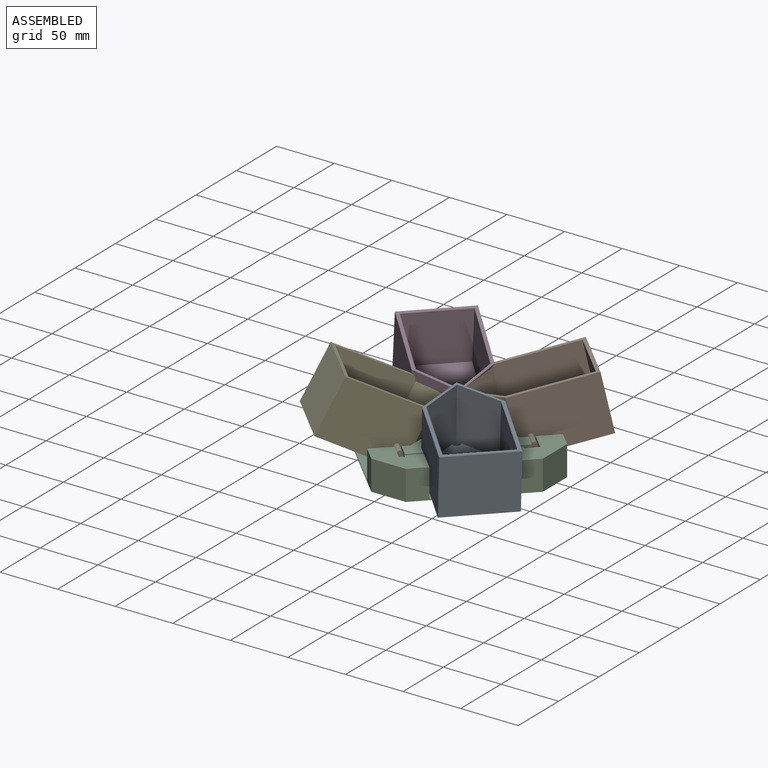
[diagram: assembled view]
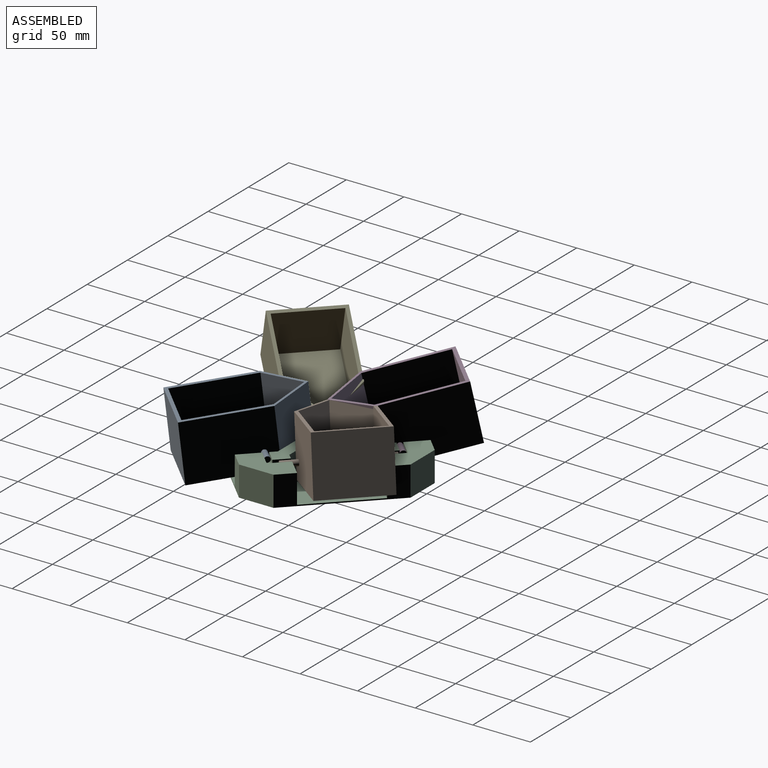
[diagram: assembled view, second angle]
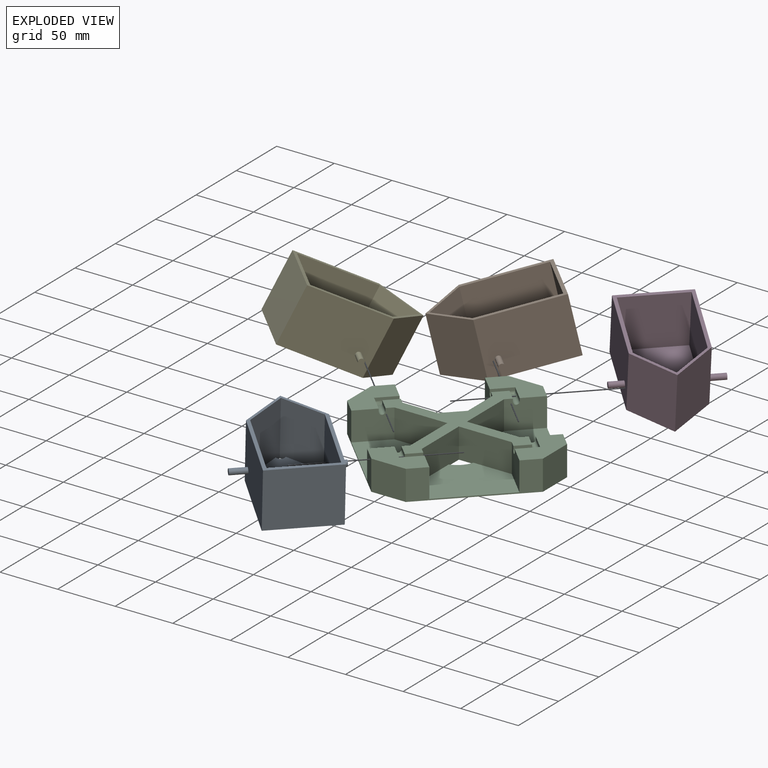
[diagram: exploded view]
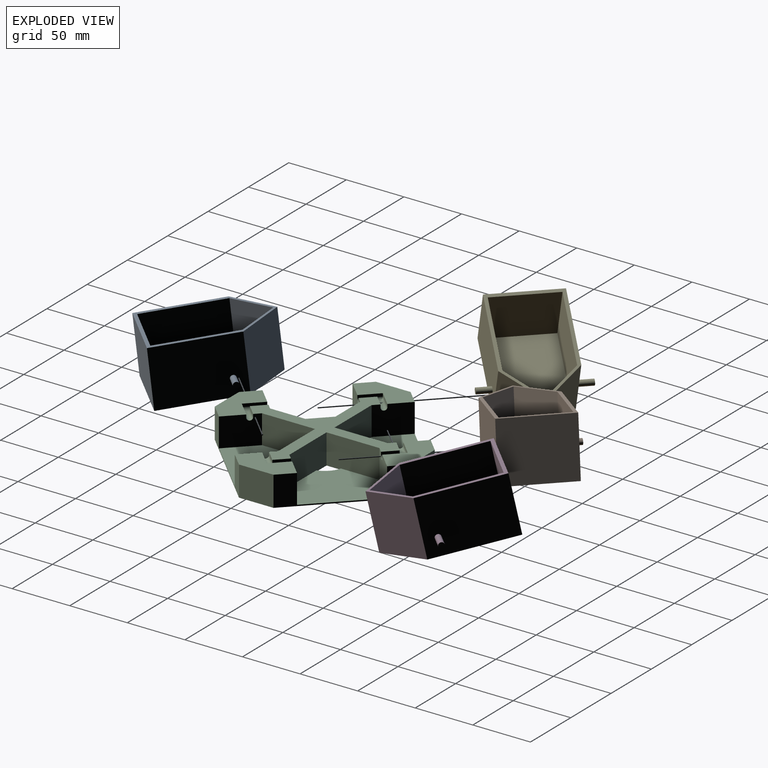
[diagram: exploded view, second angle]
ASSEMBLY  parts=5 mates=4
PART A: 18 faces, bbox 100x86x50 mm
  f0: plane 50x27mm, normal (-0.71,0.71,0), area 1809.6mm2, adj f1,f9,f10,f11,f12,f13
  f1: plane 67x47mm, normal (0,1,0), area 3149mm2, adj f0,f2,f10,f13
  f2: plane 54x47mm, normal (1,0,0), area 2538mm2, adj f1,f3,f10,f13
  f3: plane 67x47mm, normal (0,-1,0), area 3149mm2, adj f2,f9,f10,f13
  f4: plane 60x50mm, normal (-1,0,0), area 3000mm2, adj f5,f8,f10,f11
  f5: plane 70x50mm, normal (0,-1,0), area 3480.4mm2, adj f4,f6,f10,f11,f16
  f6: plane 50x30mm, normal (0.71,-0.71,0), area 2121.3mm2, adj f5,f7,f10,f11
  f7: plane 50x30mm, normal (0.71,0.71,0), area 2121.3mm2, adj f6,f8,f10,f11
  f8: plane 70x50mm, normal (0,1,0), area 3480.4mm2, adj f4,f7,f10,f11,f15
  f9: plane 50x27mm, normal (-0.71,-0.71,0), area 1809.6mm2, adj f0,f3,f10,f11,f12,f13
  f10: plane 100x60mm, normal (0,0,1), area 753mm2, adj f0,f1,f2,f3,f4,f5,f6,f7
  f11: plane 100x60mm, normal (0,0,-1), area 5074.3mm2, adj f0,f4,f5,f6,f7,f8,f9,f12
  f12: cylinder r=3.71mm len=7.06mm, axis (0,0,-1), area 28mm2, adj f0,f9,f11,f13
  f13: plane 90.47x54mm, normal (0,0,1), area 4321.3mm2, adj f0,f1,f2,f3,f9,f12
  f14: plane 5x5mm, normal (0,1,0), area 19.6mm2, adj f15
  f15: cylinder r=2.5mm len=14mm, axis (0,-1,0), area 219.9mm2, adj f8,f14
  f16: cylinder r=2.5mm len=12mm, axis (0,1,0), area 188.5mm2, adj f5,f17
  f17: plane 5x5mm, normal (0,-1,0), area 19.6mm2, adj f16
PART B: same geometry as A
PART C: 62 faces, bbox 170x170x26 mm
  f0: plane 54x25.96mm, normal (0,0,1), area 893.1mm2, adj f6,f8,f11,f26,f27,f44,f45
  f1: plane 54x25.96mm, normal (0,0,1), area 893.1mm2, adj f5,f10,f11,f22,f23,f48,f49
  f2: plane 54x25.96mm, normal (0,0,1), area 893.1mm2, adj f4,f9,f10,f18,f19,f52,f53
  f3: plane 54x25.96mm, normal (0,0,1), area 893.1mm2, adj f7,f8,f9,f30,f31,f40,f41
  f4: plane 25x22mm, normal (-0.71,-0.71,0), area 755.5mm2, adj f2,f9,f16,f17,f33,f51,f52,f57
  f5: plane 25x22mm, normal (0.71,-0.71,0), area 755.5mm2, adj f1,f10,f15,f21,f33,f47,f48,f59
  f6: plane 25x22mm, normal (0.71,0.71,0), area 755.5mm2, adj f0,f11,f14,f25,f33,f43,f44,f60
  f7: plane 25x22mm, normal (-0.71,0.71,0), area 755.5mm2, adj f3,f8,f13,f29,f33,f39,f40,f54
  f8: plane 70x70mm, normal (-0.71,-0.71,0), area 947.5mm2, adj f0,f3,f7,f12,f13,f26,f27,f30
  f9: plane 70x70mm, normal (0.71,-0.71,0), area 947.5mm2, adj f2,f3,f4,f12,f16,f18,f30,f31
  f10: plane 70x70mm, normal (0.71,0.71,0), area 947.5mm2, adj f1,f2,f5,f12,f15,f18,f19,f22
  f11: plane 70x70mm, normal (-0.71,0.71,0), area 947.5mm2, adj f0,f1,f6,f12,f14,f22,f23,f26
  f12: plane 170x170mm, normal (0,0,-1), area 18674.8mm2, adj f8,f9,f10,f11,f17,f18,f20,f21
  f13: plane 68x68mm, normal (0,0,1), area 2975.7mm2, adj f7,f8,f27,f28,f29,f37
  f14: plane 68x68mm, normal (0,0,1), area 2975.7mm2, adj f6,f11,f23,f24,f25,f34
  f15: plane 68x68mm, normal (0,0,1), area 2975.7mm2, adj f5,f10,f19,f20,f21,f35
  f16: plane 68x68mm, normal (0,0,1), area 2975.7mm2, adj f4,f9,f17,f31,f32,f36
  f17: plane 46x26mm, normal (0,-1,0), area 1162.5mm2, adj f4,f12,f16,f32,f33,f36
  f18: plane 30x26mm, normal (1,0,0), area 780mm2, adj f2,f9,f10,f12
  f19: plane 25x22mm, normal (-0.71,0.71,0), area 755.5mm2, adj f2,f10,f15,f20,f33,f50,f53,f56
  f20: plane 46x26mm, normal (0,1,0), area 1162.5mm2, adj f12,f15,f19,f21,f33,f35
  f21: plane 46x26mm, normal (1,0,0), area 1162.5mm2, adj f5,f12,f15,f20,f33,f35
  f22: plane 30x26mm, normal (0,1,0), area 780mm2, adj f1,f10,f11,f12
  f23: plane 25x22mm, normal (-0.71,-0.71,0), area 755.5mm2, adj f1,f11,f14,f24,f33,f46,f49,f58
  f24: plane 46x26mm, normal (-1,0,0), area 1162.5mm2, adj f12,f14,f23,f25,f33,f34
  f25: plane 46x26mm, normal (0,1,0), area 1162.5mm2, adj f6,f12,f14,f24,f33,f34
  f26: plane 30x26mm, normal (-1,0,0), area 780mm2, adj f0,f8,f11,f12
  f27: plane 25x22mm, normal (0.71,-0.71,0), area 755.5mm2, adj f0,f8,f13,f28,f33,f42,f45,f61
  f28: plane 46x26mm, normal (0,-1,0), area 1162.5mm2, adj f12,f13,f27,f29,f33,f37
  f29: plane 46x26mm, normal (-1,0,0), area 1162.5mm2, adj f7,f12,f13,f28,f33,f37
  f30: plane 30x26mm, normal (0,-1,0), area 780mm2, adj f3,f8,f9,f12
  f31: plane 25x22mm, normal (0.71,0.71,0), area 755.5mm2, adj f3,f9,f16,f32,f33,f38,f41,f55
  f32: plane 46x26mm, normal (1,0,0), area 1162.5mm2, adj f12,f16,f17,f31,f33,f36
  f33: plane 130x130mm, normal (0,0,1), area 2562mm2, adj f4,f5,f6,f7,f17,f19,f20,f21
  f34: cylinder r=18.24mm len=12.55mm, axis (0,0,1), area 18.5mm2, adj f12,f14,f24,f25
  f35: cylinder r=18.24mm len=12.55mm, axis (0,0,1), area 18.5mm2, adj f12,f15,f20,f21
  f36: cylinder r=18.24mm len=12.55mm, axis (0,0,1), area 18.5mm2, adj f12,f16,f17,f32
  f37: cylinder r=18.24mm len=12.55mm, axis (0,0,1), area 18.5mm2, adj f12,f13,f28,f29
  f38: plane 9.5x9.5mm, normal (0.71,-0.71,0), area 33.6mm2, adj f31,f33,f39,f55
  f39: plane 9.5x9.5mm, normal (-0.71,-0.71,0), area 33.6mm2, adj f7,f33,f38,f54
  f40: plane 13.04x13.04mm, normal (0.71,0.71,0), area 46.1mm2, adj f3,f7,f41,f54
  f41: plane 13.04x13.04mm, normal (-0.71,0.71,0), area 46.1mm2, adj f3,f31,f40,f55
  f42: plane 9.5x9.5mm, normal (-0.71,-0.71,0), area 33.6mm2, adj f27,f33,f43,f61
  f43: plane 9.5x9.5mm, normal (-0.71,0.71,0), area 33.6mm2, adj f6,f33,f42,f60
  f44: plane 13.04x13.04mm, normal (0.71,-0.71,0), area 46.1mm2, adj f0,f6,f45,f60
  f45: plane 13.04x13.04mm, normal (0.71,0.71,0), area 46.1mm2, adj f0,f27,f44,f61
  f46: plane 9.5x9.5mm, normal (-0.71,0.71,0), area 33.6mm2, adj f23,f33,f47,f58
  f47: plane 9.5x9.5mm, normal (0.71,0.71,0), area 33.6mm2, adj f5,f33,f46,f59
  f48: plane 13.04x13.04mm, normal (-0.71,-0.71,0), area 46.1mm2, adj f1,f5,f49,f59
  f49: plane 13.04x13.04mm, normal (0.71,-0.71,0), area 46.1mm2, adj f1,f23,f48,f58
  f50: plane 9.5x9.5mm, normal (0.71,0.71,0), area 33.6mm2, adj f19,f33,f51,f56
  f51: plane 9.5x9.5mm, normal (0.71,-0.71,0), area 33.6mm2, adj f4,f33,f50,f57
  f52: plane 13.04x13.04mm, normal (-0.71,0.71,0), area 46.1mm2, adj f2,f4,f53,f57
  f53: plane 13.04x13.04mm, normal (-0.71,-0.71,0), area 46.1mm2, adj f2,f19,f52,f56
  f54: cylinder r=2.5mm len=16.57mm, axis (0.71,-0.71,0), area 125.2mm2, adj f7,f39,f40,f55
  f55: cylinder r=2.5mm len=16.57mm, axis (0.71,0.71,0), area 125.2mm2, adj f31,f38,f41,f54
  f56: cylinder r=2.5mm len=16.57mm, axis (-0.71,0.71,0), area 125.2mm2, adj f19,f50,f53,f57
  f57: cylinder r=2.5mm len=16.57mm, axis (0.71,0.71,0), area 125.2mm2, adj f4,f51,f52,f56
  f58: cylinder r=2.5mm len=16.57mm, axis (0.71,0.71,0), area 125.2mm2, adj f23,f46,f49,f59
  f59: cylinder r=2.5mm len=16.57mm, axis (0.71,-0.71,0), area 125.2mm2, adj f5,f47,f48,f58
  f60: cylinder r=2.5mm len=16.57mm, axis (-0.71,-0.71,0), area 125.2mm2, adj f6,f43,f44,f61
  f61: cylinder r=2.5mm len=16.57mm, axis (0.71,-0.71,0), area 125.2mm2, adj f27,f42,f45,f60
PART D: same geometry as A
PART E: same geometry as A
PLACE A rot(axis=(0.05,-0.02,1),135.1deg) t=(7.04,-16.3,51.27)mm
PLACE B rot(axis=(0.11,0.04,-0.99),135.3deg) t=(10.31,69.48,54.38)mm
PLACE C rot(axis=(0,0,1),0deg) t=(-30.64,24.96,43.64)mm fixed
PLACE D rot(axis=(0.1,0.24,-0.97),46.4deg) t=(-71.48,69.37,54.24)mm
PLACE E rot(axis=(-0.2,0.49,0.85),51.9deg) t=(-77.14,-17.96,57.76)mm
MATE revolute B.f15 <-> C.f56  axis (-0.71,0.71,0) through (-19.37,82.23,67.14)mm
MATE revolute C.f61 <-> E.f15  axis (0.71,-0.71,0) through (-87.91,13.69,67.14)mm
MATE revolute C.f58 <-> D.f15  axis (-0.71,-0.71,0) through (-41.91,82.23,67.14)mm
MATE revolute C.f55 <-> A.f15  axis (0.71,0.71,0) through (-19.37,-32.31,67.14)mm
